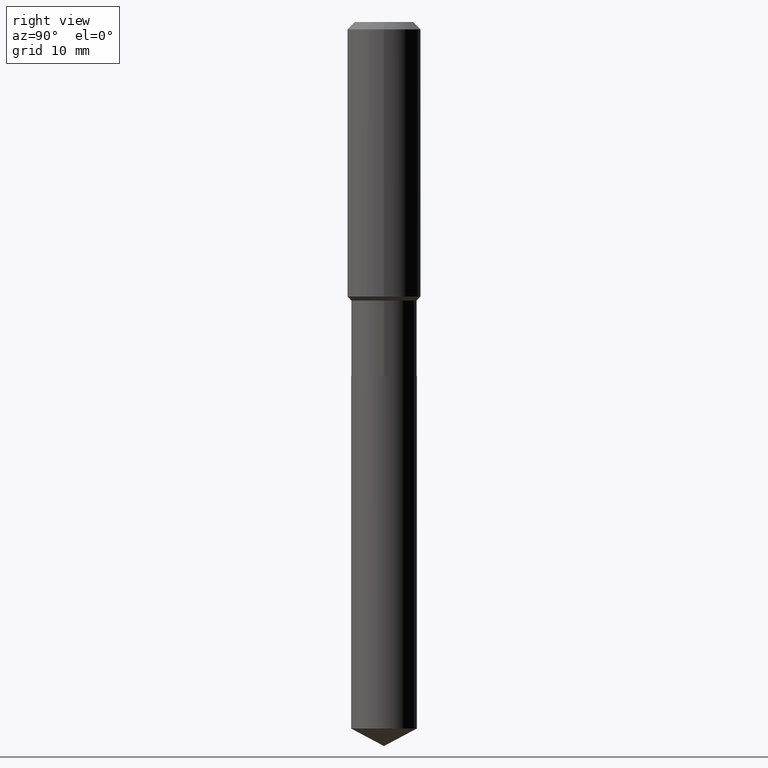
[diagram: clean part render]
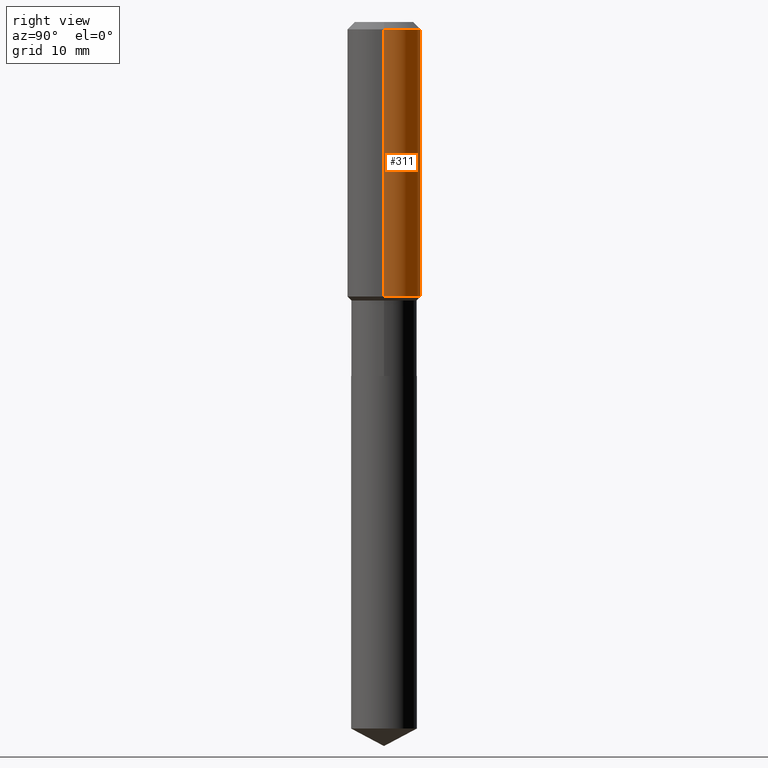
[diagram: same view with one face highlighted and labeled with its STEP entity id]
A machine part, right view. The second image highlights one B-rep face of the part: STEP entity #311.
In plain terms, the highlighted cylindrical surface (partial cylindrical patch) has radius 5.9995 mm, axis along (-0, 0, 1).
Its self-contained STEP definition (entity closure, byte-faithful):
#7 = VERTEX_POINT ( 'NONE', #9 ) ;
#9 = CARTESIAN_POINT ( 'NONE',  ( 0.2362000000000002153, -7.800143885042523413E-15, -1.761649999999999716 ) ) ;
#15 = CARTESIAN_POINT ( 'NONE',  ( -0.2361999999999999933, -1.479550897644631324E-15, -0.04724000000000028177 ) ) ;
#19 = VERTEX_POINT ( 'NONE', #213 ) ;
#23 = CYLINDRICAL_SURFACE ( 'NONE', #354, 0.2362000000000001043 ) ;
#63 = AXIS2_PLACEMENT_3D ( 'NONE', #260, #421, #434 ) ;
#77 = CARTESIAN_POINT ( 'NONE',  ( 0.2361999999999999933, -1.814313362916447440E-15, -0.04724000000000028177 ) ) ;
#114 = ORIENTED_EDGE ( 'NONE', *, *, #160, .F. ) ;
#134 = VERTEX_POINT ( 'NONE', #77 ) ;
#153 = CARTESIAN_POINT ( 'NONE',  ( 0.2362000000000001043, -1.649375784469496920E-15, 1.151752954443000508E-29 ) ) ;
#158 = ORIENTED_EDGE ( 'NONE', *, *, #197, .T. ) ;
#160 = EDGE_CURVE ( 'NONE', #134, #223, #233, .T. ) ;
#162 = DIRECTION ( 'NONE',  ( 1.000000000000000000, -6.982962677686266711E-15, 4.876176775795935793E-29 ) ) ;
#169 = EDGE_CURVE ( 'NONE', #19, #223, #389, .T. ) ;
#197 = EDGE_CURVE ( 'NONE', #7, #19, #410, .T. ) ;
#210 = ORIENTED_EDGE ( 'NONE', *, *, #281, .F. ) ;
#213 = CARTESIAN_POINT ( 'NONE',  ( -0.2362000000000002153, -4.472466158707667338E-15, -1.761649999999999716 ) ) ;
#223 = VERTEX_POINT ( 'NONE', #15 ) ;
#224 = VECTOR ( 'NONE', #428, 39.37007874015748143 ) ;
#225 = DIRECTION ( 'NONE',  ( 1.000000000000000000, -6.982962677686266711E-15, 0.000000000000000000 ) ) ;
#227 = FACE_OUTER_BOUND ( 'NONE', #430, .T. ) ;
#232 = LINE ( 'NONE', #153, #224 ) ;
#233 = CIRCLE ( 'NONE', #344, 0.2361999999999999933 ) ;
#254 = CARTESIAN_POINT ( 'NONE',  ( 1.155239464041865506E-30, -1.649375784469511859E-16, -0.04724000000000028177 ) ) ;
#260 = CARTESIAN_POINT ( 'NONE',  ( 4.308060122416044929E-29, -6.150768100573026887E-15, -1.761649999999999716 ) ) ;
#265 = CARTESIAN_POINT ( 'NONE',  ( 0.000000000000000000, 0.000000000000000000, 0.000000000000000000 ) ) ;
#281 = EDGE_CURVE ( 'NONE', #7, #134, #232, .T. ) ;
#308 = DIRECTION ( 'NONE',  ( -2.445468806185136877E-29, 3.491481338843145188E-15, 1.000000000000000000 ) ) ;
#311 = ADVANCED_FACE ( 'NONE', ( #227 ), #23, .T. ) ;
#334 = ORIENTED_EDGE ( 'NONE', *, *, #169, .T. ) ;
#344 = AXIS2_PLACEMENT_3D ( 'NONE', #254, #376, #225 ) ;
#346 = CARTESIAN_POINT ( 'NONE',  ( -0.2362000000000001043, 1.678301941865357380E-15, -1.161852468318209317E-29 ) ) ;
#351 = DIRECTION ( 'NONE',  ( -2.445468806185136597E-29, 3.491481338843145583E-15, 1.000000000000000000 ) ) ;
#354 = AXIS2_PLACEMENT_3D ( 'NONE', #265, #351, #162 ) ;
#376 = DIRECTION ( 'NONE',  ( -2.445468806185136597E-29, 3.491481338843145583E-15, 1.000000000000000000 ) ) ;
#389 = LINE ( 'NONE', #346, #411 ) ;
#410 = CIRCLE ( 'NONE', #63, 0.2362000000000002153 ) ;
#411 = VECTOR ( 'NONE', #308, 39.37007874015748143 ) ;
#421 = DIRECTION ( 'NONE',  ( -2.445468806185136597E-29, 3.491481338843145583E-15, 1.000000000000000000 ) ) ;
#428 = DIRECTION ( 'NONE',  ( -2.445468806185136877E-29, 3.491481338843145188E-15, 1.000000000000000000 ) ) ;
#430 = EDGE_LOOP ( 'NONE', ( #158, #334, #114, #210 ) ) ;
#434 = DIRECTION ( 'NONE',  ( 1.000000000000000000, -6.982962677686266711E-15, 0.000000000000000000 ) ) ;